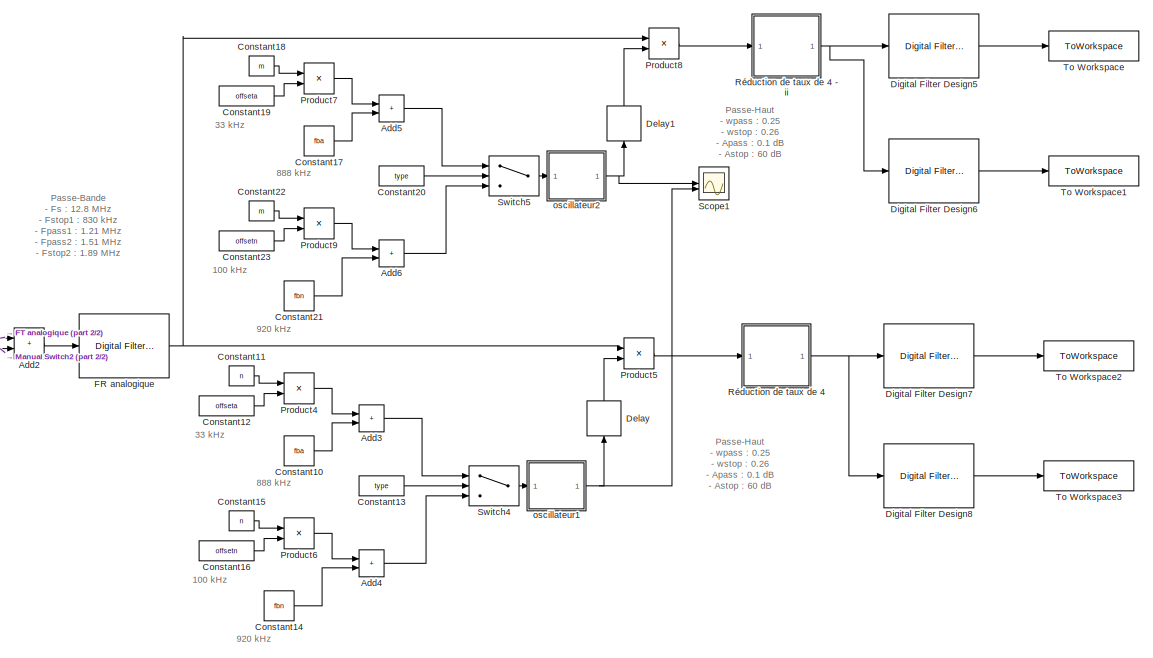
[diagram: root canvas - part 1/2, right side, full height]
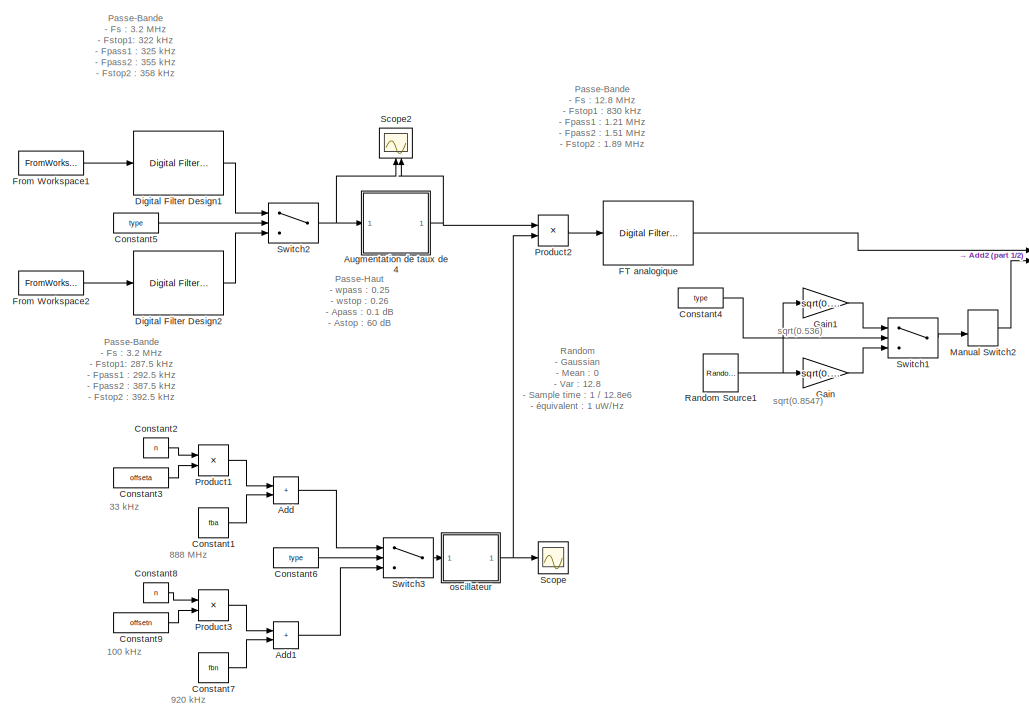
[diagram: root canvas - part 2/2, left side, full height]
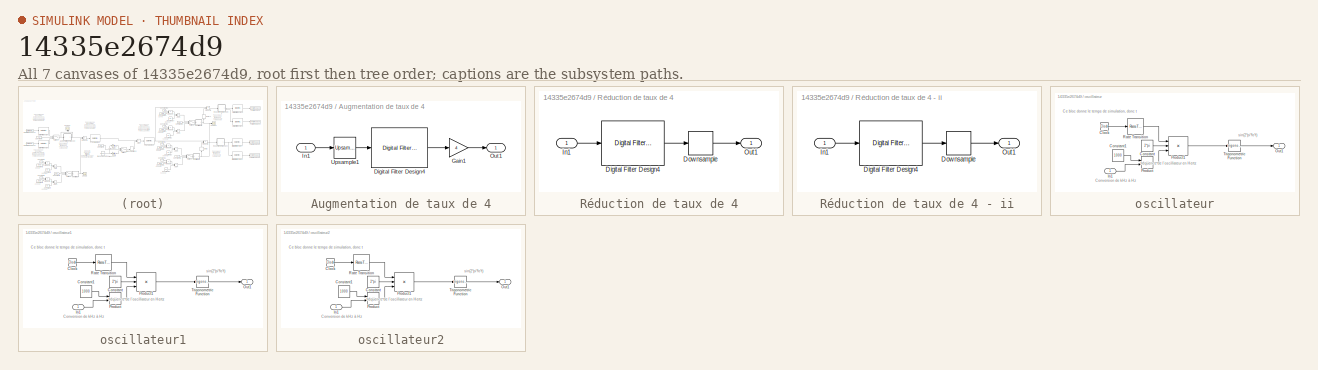
[diagram: thumbnail index - all 7 canvases of the model, root first then tree order]
MODEL slx_14335e2674d9
KIND model
CONFIG AbsTol = auto
CONFIG EnableMultiTasking = off
CONFIG FixedStep = auto
CONFIG MaxStep = auto
CONFIG MinStep = auto
CONFIG RelTol = 1e-3
CONFIG SampleTimeConstraint = Unconstrained
CONFIG SolverName = VariableStepAuto
CONFIG StartTime = 0.0
CONFIG StopTime = 0.1
BLOCK [Sum] Add
  IconShape = rectangular
BLOCK [Sum] Add1
  IconShape = rectangular
BLOCK [Sum] Add2
  IconShape = rectangular
BLOCK [Sum] Add3
  IconShape = rectangular
BLOCK [Sum] Add4
  IconShape = rectangular
BLOCK [Sum] Add5
  IconShape = rectangular
BLOCK [Sum] Add6
  IconShape = rectangular
BLOCK [SubSystem] Augmentation de taux de 4
BLOCK [Reference] Augmentation de taux de 4/Digital Filter Design4  REF=dspfdesign/Digital
Filter Design
  SourceBlock = dspfdesign/Digital\nFilter Design
  SourceType = Digital Filter Design
  UserDataPersistent = on
BLOCK [Gain] Augmentation de taux de 4/Gain1
  Gain = 4
BLOCK [Inport] Augmentation de taux de 4/In1
BLOCK [Outport] Augmentation de taux de 4/Out1
BLOCK [Reference] Augmentation de taux de 4/Upsample1  REF=dspsigops/Upsample
  SourceBlock = dspsigops/Upsample
  SourceType = Upsample
  UserDataPersistent = on
BLOCK [Constant] Constant1
  Value = fba
BLOCK [Constant] Constant10
  Value = fba
BLOCK [Constant] Constant11
  Value = n
BLOCK [Constant] Constant12
  Value = offseta
BLOCK [Constant] Constant13
  Value = type
BLOCK [Constant] Constant14
  Value = fbn
BLOCK [Constant] Constant15
  Value = n
BLOCK [Constant] Constant16
  Value = offsetn
BLOCK [Constant] Constant17
  Value = fba
BLOCK [Constant] Constant18
  Value = m
BLOCK [Constant] Constant19
  Value = offseta
BLOCK [Constant] Constant2
  Value = n
BLOCK [Constant] Constant20
  Value = type
BLOCK [Constant] Constant21
  Value = fbn
BLOCK [Constant] Constant22
  Value = m
BLOCK [Constant] Constant23
  Value = offsetn
BLOCK [Constant] Constant3
  Value = offseta
BLOCK [Constant] Constant4
  Value = type
BLOCK [Constant] Constant5
  Value = type
BLOCK [Constant] Constant6
  Value = type
BLOCK [Constant] Constant7
  Value = fbn
BLOCK [Constant] Constant8
  Value = n
BLOCK [Constant] Constant9
  Value = offsetn
BLOCK [Delay] Delay
  DelayLength = 217
  InitialCondition = 0
  InputPortMap = u0
  NameLocation = right
BLOCK [Delay] Delay1
  DelayLength = 217
  InitialCondition = 0
  InputPortMap = u0
  NameLocation = right
BLOCK [Reference] Digital Filter Design1  REF=dspfdesign/Digital
Filter Design
  SourceBlock = dspfdesign/Digital\nFilter Design
  SourceType = Digital Filter Design
  UserDataPersistent = on
BLOCK [Reference] Digital Filter Design2  REF=dspfdesign/Digital
Filter Design
  SourceBlock = dspfdesign/Digital\nFilter Design
  SourceType = Digital Filter Design
  UserDataPersistent = on
BLOCK [Reference] Digital Filter Design5  REF=dspfdesign/Digital
Filter Design
  SourceBlock = dspfdesign/Digital\nFilter Design
  SourceType = Digital Filter Design
  UserDataPersistent = on
BLOCK [Reference] Digital Filter Design6  REF=dspfdesign/Digital
Filter Design
  Commented = on
  SourceBlock = dspfdesign/Digital\nFilter Design
  SourceType = Digital Filter Design
  UserDataPersistent = on
BLOCK [Reference] Digital Filter Design7  REF=dspfdesign/Digital
Filter Design
  SourceBlock = dspfdesign/Digital\nFilter Design
  SourceType = Digital Filter Design
  UserDataPersistent = on
BLOCK [Reference] Digital Filter Design8  REF=dspfdesign/Digital
Filter Design
  Commented = on
  SourceBlock = dspfdesign/Digital\nFilter Design
  SourceType = Digital Filter Design
  UserDataPersistent = on
BLOCK [Reference] FR analogique  REF=dspfdesign/Digital
Filter Design
  SourceBlock = dspfdesign/Digital\nFilter Design
  SourceType = Digital Filter Design
  UserDataPersistent = on
BLOCK [Reference] FT analogique  REF=dspfdesign/Digital
Filter Design
  SourceBlock = dspfdesign/Digital\nFilter Design
  SourceType = Digital Filter Design
  UserDataPersistent = on
BLOCK [FromWorkspace] From Workspace1
  Interpolate = off
  OutputAfterFinalValue = Setting to zero
  SampleTime = 1/3.2e6
  VariableName = xanalogique
  ZeroCross = off
BLOCK [FromWorkspace] From Workspace2
  Interpolate = off
  OutputAfterFinalValue = Setting to zero
  SampleTime = 1/3.2e6
  VariableName = xnumerique
BLOCK [Gain] Gain
  Gain = sqrt(0.8547)
BLOCK [Gain] Gain1
  Gain = sqrt(0.536)
BLOCK [ManualSwitch] Manual Switch2
BLOCK [Product] Product1
BLOCK [Product] Product2
BLOCK [Product] Product3
BLOCK [Product] Product4
BLOCK [Product] Product5
BLOCK [Product] Product6
BLOCK [Product] Product7
BLOCK [Product] Product8
BLOCK [Product] Product9
BLOCK [Reference] Random Source1  REF=dspobslib/Random
Source
  SourceBlock = dspobslib/Random\nSource
  SourceType = Random Source Obsolete
  UserDataPersistent = on
BLOCK [SubSystem] Réduction de taux de 4
BLOCK [SubSystem] Réduction de taux de 4 - ii
BLOCK [Reference] Réduction de taux de 4 - ii/Digital Filter Design4  REF=dspfdesign/Digital
Filter Design
  SourceBlock = dspfdesign/Digital\nFilter Design
  SourceType = Digital Filter Design
  UserDataPersistent = on
BLOCK [DownSample] Réduction de taux de 4 - ii/Downsample
  InputProcessing = Elements as channels (sample based)
  N = 4
  RateOptions = Allow multirate processing
BLOCK [Inport] Réduction de taux de 4 - ii/In1
BLOCK [Outport] Réduction de taux de 4 - ii/Out1
BLOCK [Reference] Réduction de taux de 4/Digital Filter Design4  REF=dspfdesign/Digital
Filter Design
  SourceBlock = dspfdesign/Digital\nFilter Design
  SourceType = Digital Filter Design
  UserDataPersistent = on
BLOCK [DownSample] Réduction de taux de 4/Downsample
  InputProcessing = Elements as channels (sample based)
  N = 4
  RateOptions = Allow multirate processing
BLOCK [Inport] Réduction de taux de 4/In1
BLOCK [Outport] Réduction de taux de 4/Out1
BLOCK [Scope] Scope
  ActiveDisplayYMaximum = 1.25
  ActiveDisplayYMinimum = -1.25
  Floating = off
  GraphicalSettings = {"GraphicalSettings":{"LegacySettings":true,"Style":{"AxesScalingProperties":{"ScaleAxesLimitsAtStop":false},"Style":{"AxesColor":"[0 0 0]","ChannelNames":[""],"ColorOrder":"[1 1 0.0666666666666667;0.0745098039215686 0.623529411764706 1;1 0.411764705882353 0.16078431372549;0.392156862745098 0.831372549019608 0.0745098039215686;0.717647058823529 0.274509803921569 1;0.0588235294117647 1 1;1 0.074509...<+426ch>
  MultipleDisplayCache = [{"MaxYLimMag":1.25,"MaxYLimReal":1.25,"MinYLimMag":0,"MinYLimReal":-1.25,"PlotAsMagnitudePhase":false,"ShowGrid":true,"ShowLegend":false,"Title":"%<SignalLabel>","YLabel":""}]
  NumInputPorts = 1
  WasSavedAsWebScope = on
BLOCK [Scope] Scope1
  ActiveDisplayYMaximum = 1.25
  ActiveDisplayYMinimum = -1.25
  DataLoggingVariableName = ScopeData1
  Floating = off
  GraphicalSettings = {"Style":{"BackgroundColor":[0.12941176470588237,0.12941176470588237,0.12941176470588237],"AxesColor":[0.07058823529411765,0.07058823529411765,0.07058823529411765],"LabelsColor":[0.8509803921568627,0.8509803921568627,0.8509803921568627],"PreserveColors":false,"Visible":[true,true],"LineStyle":["-","-"],"LineWidth":[1.5,1.5],"BarWidth":[0.9,0.9],"LineColor":["auto","auto"],"LineFaceAlpha":[1,1],"Li...<+2305ch>
  LayoutDimensionsString = [2 1]
  MultipleDisplayCache = [{"MaxYLimMag":1.25,"MaxYLimReal":1.25,"MinYLimMag":0,"MinYLimReal":-1.25,"PlotAsMagnitudePhase":false,"ShowGrid":true,"ShowLegend":false,"Title":"%<SignalLabel>","YLabel":""},{"MaxYLimMag":1.25,"MaxYLimReal":1.25,"MinYLimMag":0,"MinYLimReal":-1.25,"PlotAsMagnitudePhase":false,"ShowGrid":true,"ShowLegend":false,"Title":"%<SignalLabel>","YLabel":""}]
  NumInputPorts = 2
  ScopeFrameLocation = window
  WasSavedAsWebScope = on
  WindowPosition = [1.000000,1.000000,2056.000000,1257.000000,]
BLOCK [Scope] Scope2
  ActiveDisplayYMaximum = 5.9271411947500114
  ActiveDisplayYMinimum = -5.9294378460727044
  DataLoggingVariableName = ScopeData2
  Floating = off
  GraphicalSettings = {"Style":{"BackgroundColor":[0.12941176470588237,0.12941176470588237,0.12941176470588237],"AxesColor":[0.07058823529411765,0.07058823529411765,0.07058823529411765],"LabelsColor":[0.8509803921568627,0.8509803921568627,0.8509803921568627],"PreserveColors":false,"Visible":[true,true],"LineStyle":["-","-"],"LineWidth":[1.5,1.5],"BarWidth":[0.9,0.9],"LineColor":["auto","auto"],"LineFaceAlpha":[1,1],"Li...<+2021ch>
  MultipleDisplayCache = [{"MaxYLimMag":5.9294378460727044,"MaxYLimReal":5.9271411947500114,"MinYLimMag":0,"MinYLimReal":-5.9294378460727044,"PlotAsMagnitudePhase":false,"ShowGrid":true,"ShowLegend":false,"Title":"%<SignalLabel>","YLabel":""}]
  NameLocation = right
  NumInputPorts = 2
  ScopeFrameLocation = window
  WasSavedAsWebScope = on
  WindowPosition = [1.000000,1.000000,2056.000000,1257.000000,]
BLOCK [Switch] Switch1
  Criteria = u2 > Threshold
  InputSameDT = off
  SaturateOnIntegerOverflow = off
BLOCK [Switch] Switch2
  Criteria = u2 > Threshold
  InputSameDT = off
  SaturateOnIntegerOverflow = off
BLOCK [Switch] Switch3
  Criteria = u2 > Threshold
  InputSameDT = off
  SaturateOnIntegerOverflow = off
BLOCK [Switch] Switch4
  Criteria = u2 > Threshold
  InputSameDT = off
  SaturateOnIntegerOverflow = off
BLOCK [Switch] Switch5
  Criteria = u2 > Threshold
  InputSameDT = off
  SaturateOnIntegerOverflow = off
BLOCK [ToWorkspace] To Workspace
  FixptAsFi = on
  MaxDataPoints = inf
  SampleTime = -1
  Save2DSignal = 2-D array (concatenate along first dimension)
  SaveFormat = Timeseries
  VariableName = zmanalogique
BLOCK [ToWorkspace] To Workspace1
  FixptAsFi = on
  MaxDataPoints = inf
  SampleTime = -1
  Save2DSignal = 2-D array (concatenate along first dimension)
  SaveFormat = Timeseries
  VariableName = zmnumerique
BLOCK [ToWorkspace] To Workspace2
  FixptAsFi = on
  MaxDataPoints = inf
  SampleTime = -1
  Save2DSignal = 2-D array (concatenate along first dimension)
  SaveFormat = Timeseries
  VariableName = znanalogique
BLOCK [ToWorkspace] To Workspace3
  FixptAsFi = on
  MaxDataPoints = inf
  SampleTime = -1
  Save2DSignal = 2-D array (concatenate along first dimension)
  SaveFormat = Timeseries
  VariableName = znnumerique
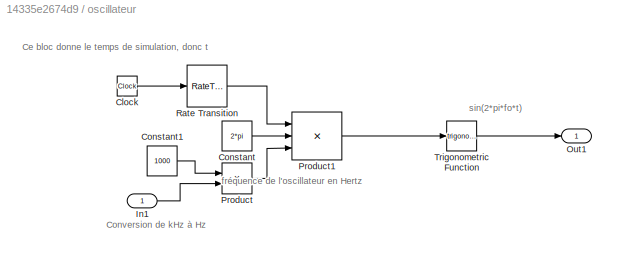
BLOCK [SubSystem] oscillateur
BLOCK [Clock] oscillateur/Clock
  Decimation = 1
BLOCK [Constant] oscillateur/Constant
  Value = 2*pi
BLOCK [Constant] oscillateur/Constant1
  Value = 1000
BLOCK [Inport] oscillateur/In1
BLOCK [Outport] oscillateur/Out1
BLOCK [Product] oscillateur/Product
BLOCK [Product] oscillateur/Product1
  Inputs = 3
BLOCK [RateTransition] oscillateur/Rate Transition
  OutPortSampleTime = 1/12.8e6
BLOCK [Trigonometry] oscillateur/Trigonometric Function
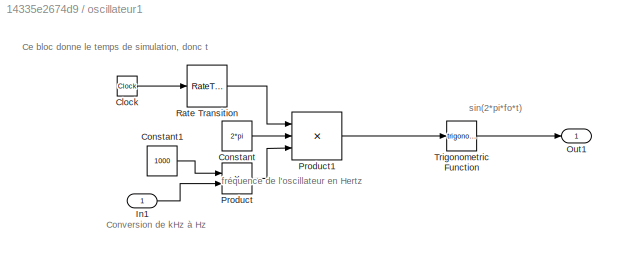
BLOCK [SubSystem] oscillateur1
BLOCK [Clock] oscillateur1/Clock
  Decimation = 1
BLOCK [Constant] oscillateur1/Constant
  Value = 2*pi
BLOCK [Constant] oscillateur1/Constant1
  Value = 1000
BLOCK [Inport] oscillateur1/In1
BLOCK [Outport] oscillateur1/Out1
BLOCK [Product] oscillateur1/Product
BLOCK [Product] oscillateur1/Product1
  Inputs = 3
BLOCK [RateTransition] oscillateur1/Rate Transition
  OutPortSampleTime = 1/12.8e6
BLOCK [Trigonometry] oscillateur1/Trigonometric Function
BLOCK [SubSystem] oscillateur2
BLOCK [Clock] oscillateur2/Clock
  Decimation = 1
BLOCK [Constant] oscillateur2/Constant
  Value = 2*pi
BLOCK [Constant] oscillateur2/Constant1
  Value = 1000
BLOCK [Inport] oscillateur2/In1
BLOCK [Outport] oscillateur2/Out1
BLOCK [Product] oscillateur2/Product
BLOCK [Product] oscillateur2/Product1
  Inputs = 3
BLOCK [RateTransition] oscillateur2/Rate Transition
  OutPortSampleTime = 1/12.8e6
BLOCK [Trigonometry] oscillateur2/Trigonometric Function
ANNOTATION (root): 100 kHz
ANNOTATION (root): 33 kHz
ANNOTATION (root): 888 MHz
ANNOTATION (root): 888 kHz
ANNOTATION (root): 920 kHz
ANNOTATION (root): Passe-Bande - Fs : 12.8 MHz - Fstop1 : 830 kHz - Fpass1 : 1.21 MHz - Fpass2 : 1.51 MHz - Fstop2 : 1.89 MHz - Astop1 : 80 dB - Apass : 0.1 dB - Astop2 : 80 dB
ANNOTATION (root): Passe-Bande - Fs : 3.2 MHz - Fstop1: 287.5 kHz - Fpass1 : 292.5 kHz - Fpass2 : 387.5 kHz - Fstop2 : 392.5 kHz - Astop : 50 dB - Apass : 1 dB - Astop : 50 dB
ANNOTATION (root): Passe-Bande - Fs : 3.2 MHz - Fstop1: 322 kHz - Fpass1 : 325 kHz - Fpass2 : 355 kHz - Fstop2 : 358 kHz - Astop : 50 dB - Apass : 1 dB - Astop : 50 dB
ANNOTATION (root): Passe-Haut - wpass : 0.25 - wstop : 0.26 - Apass : 0.1 dB - Astop : 60 dB Downsample - 4
ANNOTATION (root): Passe-Haut - wpass : 0.25 - wstop : 0.26 - Apass : 0.1 dB - Astop : 60 dB Gain - 4 Upsample - 4
ANNOTATION (root): Random - Gaussian - Mean : 0 - Var : 12.8 - Sample time : 1 / 12.8e6 - équivalent : 1 uW/Hz
ANNOTATION (root): sqrt(0.536)
ANNOTATION (root): sqrt(0.8547)
ANNOTATION oscillateur: Ce bloc donne le temps de simulation, donc t
ANNOTATION oscillateur: Conversion de kHz à Hz
ANNOTATION oscillateur: fréquence de l'oscillateur en Hertz
ANNOTATION oscillateur: sin(2*pi*fo*t)
ANNOTATION oscillateur1: Ce bloc donne le temps de simulation, donc t
ANNOTATION oscillateur1: Conversion de kHz à Hz
ANNOTATION oscillateur1: fréquence de l'oscillateur en Hertz
ANNOTATION oscillateur1: sin(2*pi*fo*t)
ANNOTATION oscillateur2: Ce bloc donne le temps de simulation, donc t
ANNOTATION oscillateur2: Conversion de kHz à Hz
ANNOTATION oscillateur2: fréquence de l'oscillateur en Hertz
ANNOTATION oscillateur2: sin(2*pi*fo*t)
LINE Add1:1 -> Switch3:3
LINE Add2:1 -> FR analogique:1
LINE Add3:1 -> Switch4:1
LINE Add4:1 -> Switch4:3
LINE Add5:1 -> Switch5:1
LINE Add6:1 -> Switch5:3
LINE Add:1 -> Switch3:1
LINE Augmentation de taux de 4/Digital Filter Design4:1 -> Augmentation de taux de 4/Gain1:1
LINE Augmentation de taux de 4/Gain1:1 -> Augmentation de taux de 4/Out1:1
LINE Augmentation de taux de 4/In1:1 -> Augmentation de taux de 4/Upsample1:1
LINE Augmentation de taux de 4/Upsample1:1 -> Augmentation de taux de 4/Digital Filter Design4:1
NET Augmentation de taux de 4:1 -> Product2:1, Scope2:2
LINE Constant10:1 -> Add3:2
LINE Constant11:1 -> Product4:1
LINE Constant12:1 -> Product4:2
LINE Constant13:1 -> Switch4:2
LINE Constant14:1 -> Add4:2
LINE Constant15:1 -> Product6:1
LINE Constant16:1 -> Product6:2
LINE Constant17:1 -> Add5:2
LINE Constant18:1 -> Product7:1
LINE Constant19:1 -> Product7:2
LINE Constant1:1 -> Add:2
LINE Constant20:1 -> Switch5:2
LINE Constant21:1 -> Add6:2
LINE Constant22:1 -> Product9:1
LINE Constant23:1 -> Product9:2
LINE Constant2:1 -> Product1:1
LINE Constant3:1 -> Product1:2
LINE Constant4:1 -> Switch1:2
LINE Constant5:1 -> Switch2:2
LINE Constant6:1 -> Switch3:2
LINE Constant7:1 -> Add1:2
LINE Constant8:1 -> Product3:1
LINE Constant9:1 -> Product3:2
LINE Delay1:1 -> Product8:2
LINE Delay:1 -> Product5:2
LINE Digital Filter Design1:1 -> Switch2:1
LINE Digital Filter Design2:1 -> Switch2:3
LINE Digital Filter Design5:1 -> To Workspace:1
LINE Digital Filter Design6:1 -> To Workspace1:1
LINE Digital Filter Design7:1 -> To Workspace2:1
LINE Digital Filter Design8:1 -> To Workspace3:1
NET FR analogique:1 -> Product5:1, Product8:1
LINE FT analogique:1 -> Add2:1
LINE From Workspace1:1 -> Digital Filter Design1:1
LINE From Workspace2:1 -> Digital Filter Design2:1
LINE Gain1:1 -> Switch1:1
LINE Gain:1 -> Switch1:3
LINE Manual Switch2:1 -> Add2:2
LINE Product1:1 -> Add:1
LINE Product2:1 -> FT analogique:1
LINE Product3:1 -> Add1:1
LINE Product4:1 -> Add3:1
LINE Product5:1 -> Réduction de taux de 4:1
LINE Product6:1 -> Add4:1
LINE Product7:1 -> Add5:1
LINE Product8:1 -> Réduction de taux de 4 - ii:1
LINE Product9:1 -> Add6:1
NET Random Source1:1 -> Gain1:1, Gain:1
LINE Réduction de taux de 4 - ii/Digital Filter Design4:1 -> Réduction de taux de 4 - ii/Downsample:1
LINE Réduction de taux de 4 - ii/Downsample:1 -> Réduction de taux de 4 - ii/Out1:1
LINE Réduction de taux de 4 - ii/In1:1 -> Réduction de taux de 4 - ii/Digital Filter Design4:1
NET Réduction de taux de 4 - ii:1 -> Digital Filter Design5:1, Digital Filter Design6:1
LINE Réduction de taux de 4/Digital Filter Design4:1 -> Réduction de taux de 4/Downsample:1
LINE Réduction de taux de 4/Downsample:1 -> Réduction de taux de 4/Out1:1
LINE Réduction de taux de 4/In1:1 -> Réduction de taux de 4/Digital Filter Design4:1
NET Réduction de taux de 4:1 -> Digital Filter Design7:1, Digital Filter Design8:1
LINE Switch1:1 -> Manual Switch2:2
NET Switch2:1 -> Augmentation de taux de 4:1, Scope2:1
LINE Switch3:1 -> oscillateur:1
LINE Switch4:1 -> oscillateur1:1
LINE Switch5:1 -> oscillateur2:1
LINE oscillateur/Clock:1 -> oscillateur/Rate Transition:1
LINE oscillateur/Constant1:1 -> oscillateur/Product:1
LINE oscillateur/Constant:1 -> oscillateur/Product1:2
LINE oscillateur/In1:1 -> oscillateur/Product:2
LINE oscillateur/Product1:1 -> oscillateur/Trigonometric Function:1
LINE oscillateur/Product:1 -> oscillateur/Product1:3
LINE oscillateur/Rate Transition:1 -> oscillateur/Product1:1
LINE oscillateur/Trigonometric Function:1 -> oscillateur/Out1:1
LINE oscillateur1/Clock:1 -> oscillateur1/Rate Transition:1
LINE oscillateur1/Constant1:1 -> oscillateur1/Product:1
LINE oscillateur1/Constant:1 -> oscillateur1/Product1:2
LINE oscillateur1/In1:1 -> oscillateur1/Product:2
LINE oscillateur1/Product1:1 -> oscillateur1/Trigonometric Function:1
LINE oscillateur1/Product:1 -> oscillateur1/Product1:3
LINE oscillateur1/Rate Transition:1 -> oscillateur1/Product1:1
LINE oscillateur1/Trigonometric Function:1 -> oscillateur1/Out1:1
NET oscillateur1:1 -> Delay:1, Scope1:2
LINE oscillateur2/Clock:1 -> oscillateur2/Rate Transition:1
LINE oscillateur2/Constant1:1 -> oscillateur2/Product:1
LINE oscillateur2/Constant:1 -> oscillateur2/Product1:2
LINE oscillateur2/In1:1 -> oscillateur2/Product:2
LINE oscillateur2/Product1:1 -> oscillateur2/Trigonometric Function:1
LINE oscillateur2/Product:1 -> oscillateur2/Product1:3
LINE oscillateur2/Rate Transition:1 -> oscillateur2/Product1:1
LINE oscillateur2/Trigonometric Function:1 -> oscillateur2/Out1:1
NET oscillateur2:1 -> Delay1:1, Scope1:1
NET oscillateur:1 -> Product2:2, Scope:1
note: NET lines group one-source signal fan-out (src -> all destinations, sorted); 1:1 wires keep LINE
